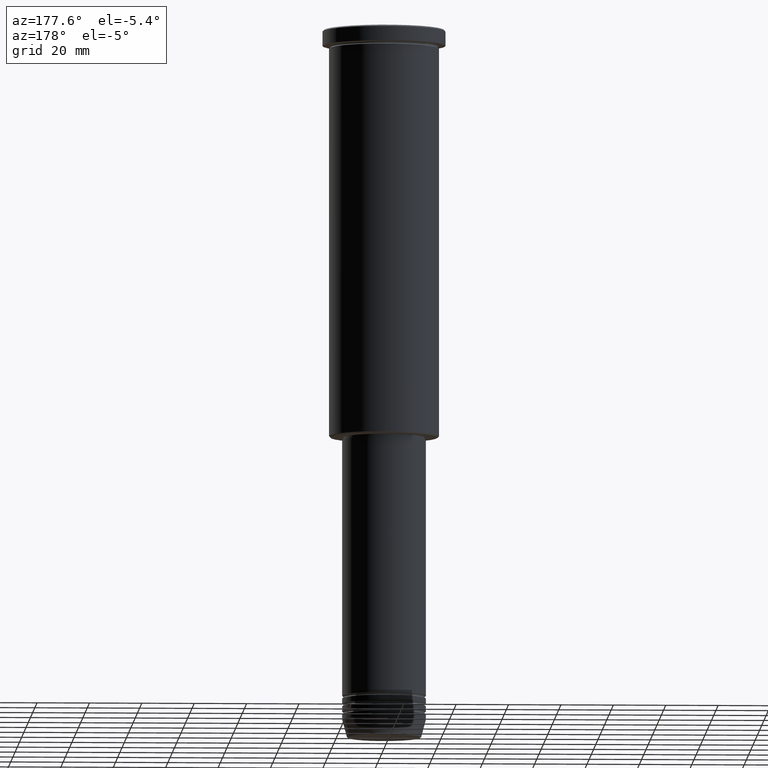
[diagram: clean part render]
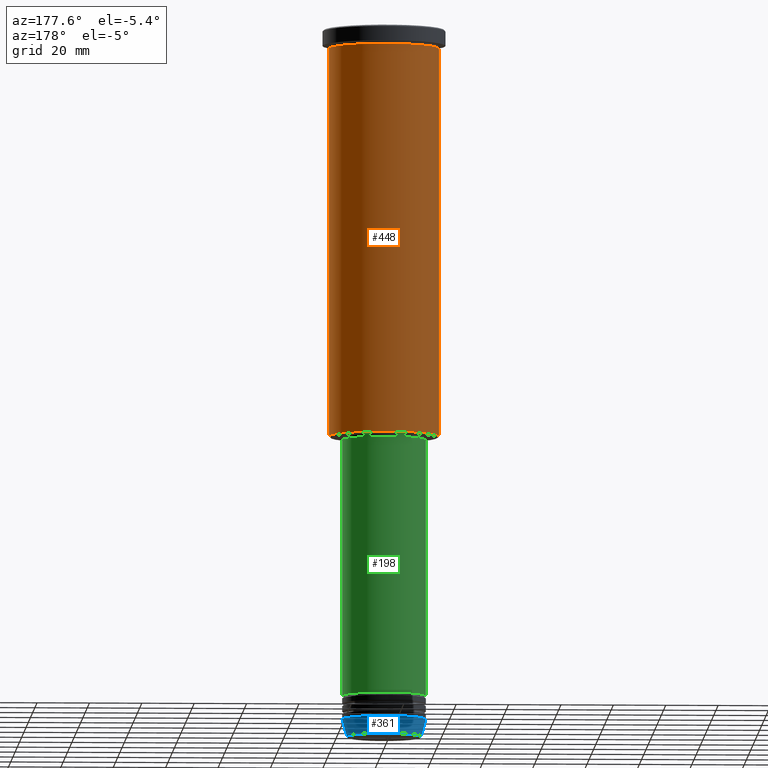
[diagram: same view with three faces highlighted in distinct colors, each labeled with its STEP entity id]
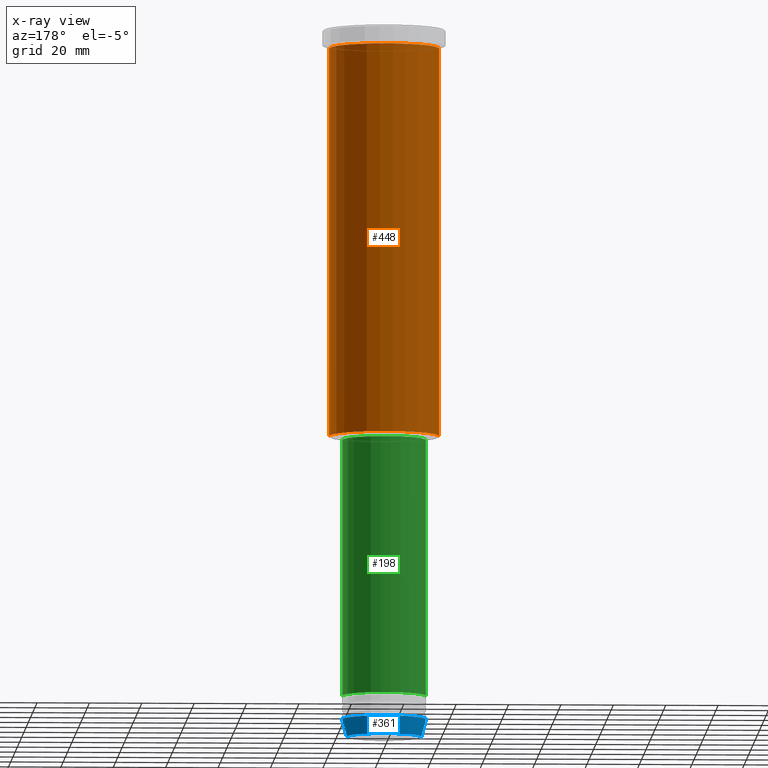
[diagram: x-ray of the same camera — body ghosted, the three highlighted faces saturated]
A machine part, auxiliary view with three faces highlighted in distinct colors.
The next image is the same camera in x-ray (body ghosted, the three faces saturated) — at least one of them is partly hidden behind the body in this view.
Their STEP definitions:

[orange] entity #448 — the highlighted cylindrical surface (partial cylindrical patch) has radius 21 mm, axis along (-0, -0, 1).
#53 = LINE ( 'NONE', #878, #188 ) ;
#99 = DIRECTION ( 'NONE',  ( -0.000000000000000000, -0.000000000000000000, 1.000000000000000000 ) ) ;
#167 = EDGE_CURVE ( 'NONE', #667, #1127, #53, .T. ) ;
#179 = ORIENTED_EDGE ( 'NONE', *, *, #590, .F. ) ;
#188 = VECTOR ( 'NONE', #333, 1000.000000000000000 ) ;
#200 = FACE_OUTER_BOUND ( 'NONE', #410, .T. ) ;
#240 = ORIENTED_EDGE ( 'NONE', *, *, #297, .F. ) ;
#297 = EDGE_CURVE ( 'NONE', #691, #449, #811, .T. ) ;
#333 = DIRECTION ( 'NONE',  ( -0.000000000000000000, -0.000000000000000000, 1.000000000000000000 ) ) ;
#384 = DIRECTION ( 'NONE',  ( -1.000000000000000000, 0.000000000000000000, 0.000000000000000000 ) ) ;
#398 = AXIS2_PLACEMENT_3D ( 'NONE', #920, #927, #570 ) ;
#410 = EDGE_LOOP ( 'NONE', ( #655, #1099, #179, #240 ) ) ;
#448 = ADVANCED_FACE ( 'NONE', ( #200 ), #935, .T. ) ;
#449 = VERTEX_POINT ( 'NONE', #462 ) ;
#462 = CARTESIAN_POINT ( 'NONE',  ( 21.00000000000000000, 0.000000000000000000, -6.999999999999994671 ) ) ;
#513 = DIRECTION ( 'NONE',  ( 1.000000000000000000, 0.000000000000000000, 0.000000000000000000 ) ) ;
#520 = CIRCLE ( 'NONE', #1178, 21.00000000000000000 ) ;
#527 = EDGE_CURVE ( 'NONE', #691, #667, #520, .T. ) ;
#564 = CARTESIAN_POINT ( 'NONE',  ( 0.000000000000000000, 0.000000000000000000, -155.4999999999999716 ) ) ;
#570 = DIRECTION ( 'NONE',  ( 1.000000000000000000, 0.000000000000000000, 0.000000000000000000 ) ) ;
#590 = EDGE_CURVE ( 'NONE', #449, #1127, #756, .T. ) ;
#603 = CARTESIAN_POINT ( 'NONE',  ( 0.000000000000000000, 0.000000000000000000, -6.999999999999994671 ) ) ;
#624 = VECTOR ( 'NONE', #629, 1000.000000000000000 ) ;
#629 = DIRECTION ( 'NONE',  ( -0.000000000000000000, -0.000000000000000000, 1.000000000000000000 ) ) ;
#655 = ORIENTED_EDGE ( 'NONE', *, *, #527, .T. ) ;
#667 = VERTEX_POINT ( 'NONE', #685 ) ;
#685 = CARTESIAN_POINT ( 'NONE',  ( -21.00000000000000000, 2.571758278209441661E-15, -155.4999999999999716 ) ) ;
#691 = VERTEX_POINT ( 'NONE', #981 ) ;
#756 = CIRCLE ( 'NONE', #907, 21.00000000000000000 ) ;
#788 = CARTESIAN_POINT ( 'NONE',  ( -21.00000000000000000, 2.571758278209441661E-15, -6.999999999999994671 ) ) ;
#811 = LINE ( 'NONE', #901, #624 ) ;
#864 = DIRECTION ( 'NONE',  ( -0.000000000000000000, -0.000000000000000000, 1.000000000000000000 ) ) ;
#878 = CARTESIAN_POINT ( 'NONE',  ( -21.00000000000000000, 2.571758278209441661E-15, 0.000000000000000000 ) ) ;
#901 = CARTESIAN_POINT ( 'NONE',  ( 21.00000000000000000, 0.000000000000000000, 0.000000000000000000 ) ) ;
#907 = AXIS2_PLACEMENT_3D ( 'NONE', #603, #864, #513 ) ;
#920 = CARTESIAN_POINT ( 'NONE',  ( 0.000000000000000000, 0.000000000000000000, 0.000000000000000000 ) ) ;
#927 = DIRECTION ( 'NONE',  ( -0.000000000000000000, -0.000000000000000000, 1.000000000000000000 ) ) ;
#935 = CYLINDRICAL_SURFACE ( 'NONE', #398, 21.00000000000000000 ) ;
#981 = CARTESIAN_POINT ( 'NONE',  ( 21.00000000000000000, 0.000000000000000000, -155.4999999999999716 ) ) ;
#1099 = ORIENTED_EDGE ( 'NONE', *, *, #167, .T. ) ;
#1127 = VERTEX_POINT ( 'NONE', #788 ) ;
#1178 = AXIS2_PLACEMENT_3D ( 'NONE', #564, #99, #384 ) ;

[blue] entity #361 — the highlighted conical surface has half-angle 15 deg.
#18 = EDGE_CURVE ( 'NONE', #396, #930, #754, .T. ) ;
#27 = CARTESIAN_POINT ( 'NONE',  ( 16.00000000000000000, 0.000000000000000000, -264.0000000000000000 ) ) ;
#43 = VERTEX_POINT ( 'NONE', #27 ) ;
#59 = EDGE_CURVE ( 'NONE', #43, #542, #873, .T. ) ;
#78 = CARTESIAN_POINT ( 'NONE',  ( -16.00000000000000000, 1.959434878635765131E-15, -264.0000000000000000 ) ) ;
#79 = CARTESIAN_POINT ( 'NONE',  ( 0.000000000000000000, 0.000000000000000000, -264.0000000000000000 ) ) ;
#103 = CARTESIAN_POINT ( 'NONE',  ( 14.22365507213718772, 0.000000000000000000, -270.6294095225512706 ) ) ;
#130 = CONICAL_SURFACE ( 'NONE', #926, 16.00000000000000000, 0.2617993877991500740 ) ;
#231 = ORIENTED_EDGE ( 'NONE', *, *, #292, .F. ) ;
#235 = CARTESIAN_POINT ( 'NONE',  ( 0.000000000000000000, 0.000000000000000000, -270.6294095225512706 ) ) ;
#257 = LINE ( 'NONE', #541, #265 ) ;
#265 = VECTOR ( 'NONE', #704, 1000.000000000000000 ) ;
#268 = VECTOR ( 'NONE', #444, 1000.000000000000000 ) ;
#281 = AXIS2_PLACEMENT_3D ( 'NONE', #316, #713, #646 ) ;
#292 = EDGE_CURVE ( 'NONE', #396, #43, #257, .T. ) ;
#316 = CARTESIAN_POINT ( 'NONE',  ( 0.000000000000000000, 0.000000000000000000, -264.0000000000000000 ) ) ;
#361 = ADVANCED_FACE ( 'NONE', ( #792 ), #130, .T. ) ;
#396 = VERTEX_POINT ( 'NONE', #103 ) ;
#403 = ORIENTED_EDGE ( 'NONE', *, *, #59, .F. ) ;
#431 = EDGE_LOOP ( 'NONE', ( #967, #1058, #403, #231 ) ) ;
#444 = DIRECTION ( 'NONE',  ( -0.2588190451025213501, 3.169619151431772337E-17, 0.9659258262890680902 ) ) ;
#541 = CARTESIAN_POINT ( 'NONE',  ( 16.00000000000000000, 0.000000000000000000, -264.0000000000000000 ) ) ;
#542 = VERTEX_POINT ( 'NONE', #945 ) ;
#598 = DIRECTION ( 'NONE',  ( -0.000000000000000000, -0.000000000000000000, 1.000000000000000000 ) ) ;
#646 = DIRECTION ( 'NONE',  ( 1.000000000000000000, 0.000000000000000000, 0.000000000000000000 ) ) ;
#704 = DIRECTION ( 'NONE',  ( 0.2588190451025213501, 0.000000000000000000, 0.9659258262890680902 ) ) ;
#708 = DIRECTION ( 'NONE',  ( -0.000000000000000000, -0.000000000000000000, 1.000000000000000000 ) ) ;
#713 = DIRECTION ( 'NONE',  ( -0.000000000000000000, -0.000000000000000000, 1.000000000000000000 ) ) ;
#723 = EDGE_CURVE ( 'NONE', #930, #542, #896, .T. ) ;
#750 = CARTESIAN_POINT ( 'NONE',  ( -14.22365507213718772, 1.850665122131323337E-15, -270.6294095225512706 ) ) ;
#754 = CIRCLE ( 'NONE', #795, 14.22365507213718772 ) ;
#792 = FACE_OUTER_BOUND ( 'NONE', #431, .T. ) ;
#795 = AXIS2_PLACEMENT_3D ( 'NONE', #235, #598, #956 ) ;
#873 = CIRCLE ( 'NONE', #281, 16.00000000000000000 ) ;
#896 = LINE ( 'NONE', #78, #268 ) ;
#926 = AXIS2_PLACEMENT_3D ( 'NONE', #79, #708, #980 ) ;
#930 = VERTEX_POINT ( 'NONE', #750 ) ;
#945 = CARTESIAN_POINT ( 'NONE',  ( -16.00000000000000000, 1.959434878635765131E-15, -264.0000000000000000 ) ) ;
#956 = DIRECTION ( 'NONE',  ( 1.000000000000000000, 0.000000000000000000, 0.000000000000000000 ) ) ;
#967 = ORIENTED_EDGE ( 'NONE', *, *, #18, .T. ) ;
#980 = DIRECTION ( 'NONE',  ( 1.000000000000000000, 0.000000000000000000, 0.000000000000000000 ) ) ;
#1058 = ORIENTED_EDGE ( 'NONE', *, *, #723, .T. ) ;

[green] entity #198 — the highlighted cylindrical surface (partial cylindrical patch) has radius 16 mm, axis along (-0, -0, 1).
#26 = CARTESIAN_POINT ( 'NONE',  ( 16.00000000000000000, 0.000000000000000000, 0.000000000000000000 ) ) ;
#28 = CIRCLE ( 'NONE', #983, 16.00000000000000000 ) ;
#36 = ORIENTED_EDGE ( 'NONE', *, *, #97, .T. ) ;
#67 = CARTESIAN_POINT ( 'NONE',  ( 0.000000000000000000, 0.000000000000000000, 0.000000000000000000 ) ) ;
#97 = EDGE_CURVE ( 'NONE', #125, #226, #481, .T. ) ;
#111 = CARTESIAN_POINT ( 'NONE',  ( -16.00000000000000000, 1.959434878635765131E-15, 0.000000000000000000 ) ) ;
#116 = LINE ( 'NONE', #26, #417 ) ;
#125 = VERTEX_POINT ( 'NONE', #528 ) ;
#144 = ORIENTED_EDGE ( 'NONE', *, *, #1013, .T. ) ;
#160 = DIRECTION ( 'NONE',  ( -0.000000000000000000, -0.000000000000000000, 1.000000000000000000 ) ) ;
#161 = ORIENTED_EDGE ( 'NONE', *, *, #1003, .F. ) ;
#164 = ORIENTED_EDGE ( 'NONE', *, *, #211, .F. ) ;
#187 = CIRCLE ( 'NONE', #1007, 16.00000000000000000 ) ;
#198 = ADVANCED_FACE ( 'NONE', ( #690 ), #936, .T. ) ;
#211 = EDGE_CURVE ( 'NONE', #275, #496, #116, .T. ) ;
#226 = VERTEX_POINT ( 'NONE', #1182 ) ;
#228 = CARTESIAN_POINT ( 'NONE',  ( 0.000000000000000000, 0.000000000000000000, -157.0000000000000000 ) ) ;
#266 = CARTESIAN_POINT ( 'NONE',  ( 16.00000000000000000, 0.000000000000000000, -255.0000000000000000 ) ) ;
#275 = VERTEX_POINT ( 'NONE', #266 ) ;
#293 = DIRECTION ( 'NONE',  ( 1.000000000000000000, 0.000000000000000000, 0.000000000000000000 ) ) ;
#399 = DIRECTION ( 'NONE',  ( -0.000000000000000000, -0.000000000000000000, 1.000000000000000000 ) ) ;
#417 = VECTOR ( 'NONE', #399, 1000.000000000000000 ) ;
#481 = LINE ( 'NONE', #111, #1116 ) ;
#496 = VERTEX_POINT ( 'NONE', #837 ) ;
#498 = CARTESIAN_POINT ( 'NONE',  ( 0.000000000000000000, 0.000000000000000000, -255.0000000000000000 ) ) ;
#528 = CARTESIAN_POINT ( 'NONE',  ( -16.00000000000000000, 1.959434878635765131E-15, -255.0000000000000000 ) ) ;
#602 = DIRECTION ( 'NONE',  ( -0.000000000000000000, -0.000000000000000000, 1.000000000000000000 ) ) ;
#673 = DIRECTION ( 'NONE',  ( -0.000000000000000000, -0.000000000000000000, 1.000000000000000000 ) ) ;
#683 = EDGE_LOOP ( 'NONE', ( #144, #36, #161, #164 ) ) ;
#690 = FACE_OUTER_BOUND ( 'NONE', #683, .T. ) ;
#837 = CARTESIAN_POINT ( 'NONE',  ( 16.00000000000000000, 0.000000000000000000, -157.0000000000000000 ) ) ;
#936 = CYLINDRICAL_SURFACE ( 'NONE', #1158, 16.00000000000000000 ) ;
#962 = DIRECTION ( 'NONE',  ( 1.000000000000000000, 0.000000000000000000, 0.000000000000000000 ) ) ;
#983 = AXIS2_PLACEMENT_3D ( 'NONE', #498, #602, #962 ) ;
#1003 = EDGE_CURVE ( 'NONE', #496, #226, #187, .T. ) ;
#1007 = AXIS2_PLACEMENT_3D ( 'NONE', #228, #673, #1146 ) ;
#1013 = EDGE_CURVE ( 'NONE', #275, #125, #28, .T. ) ;
#1110 = DIRECTION ( 'NONE',  ( -0.000000000000000000, -0.000000000000000000, 1.000000000000000000 ) ) ;
#1116 = VECTOR ( 'NONE', #160, 1000.000000000000000 ) ;
#1146 = DIRECTION ( 'NONE',  ( 1.000000000000000000, 0.000000000000000000, 0.000000000000000000 ) ) ;
#1158 = AXIS2_PLACEMENT_3D ( 'NONE', #67, #1110, #293 ) ;
#1182 = CARTESIAN_POINT ( 'NONE',  ( -16.00000000000000000, 1.959434878635765131E-15, -157.0000000000000000 ) ) ;